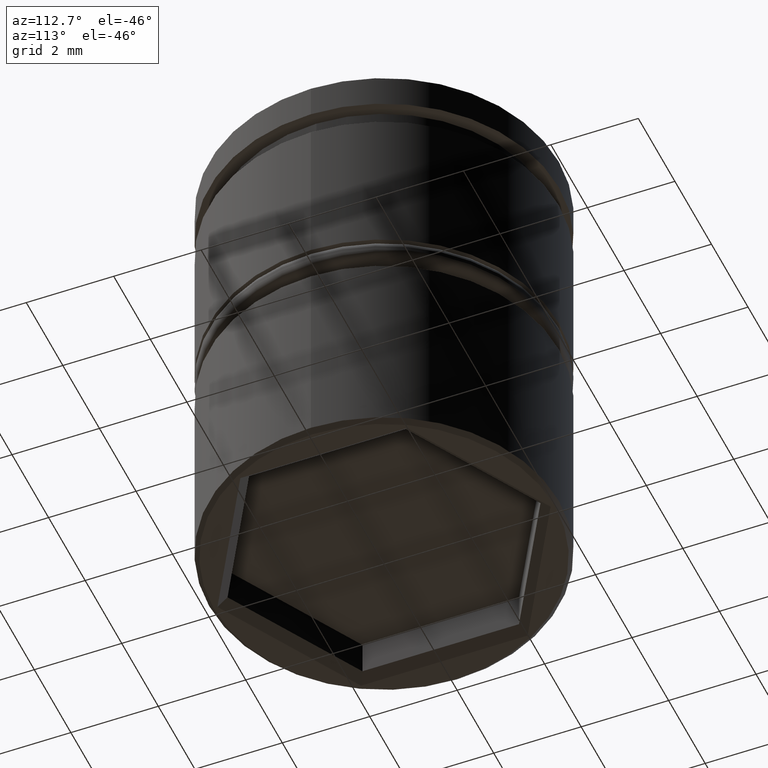
[diagram: clean part render]
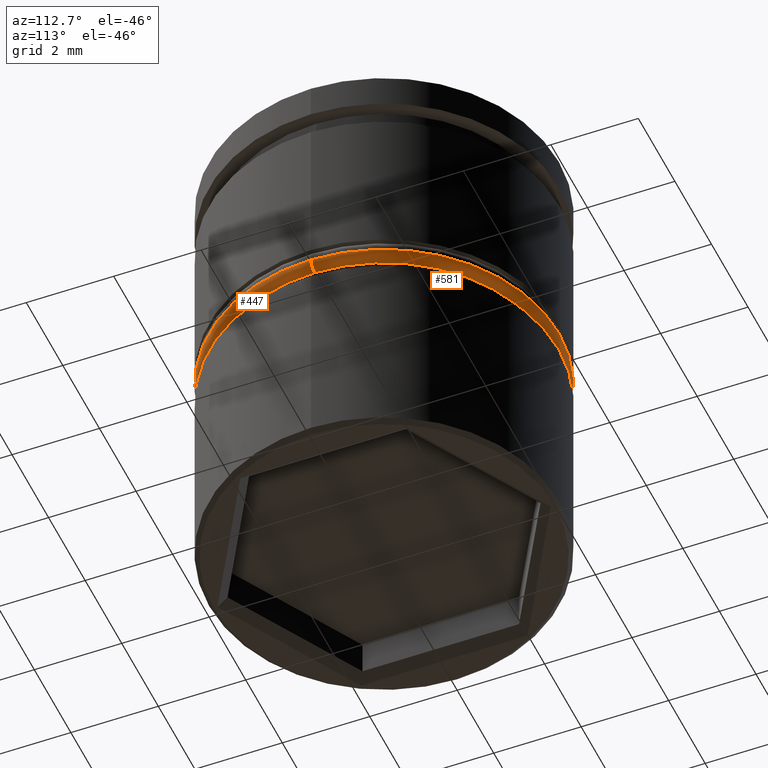
[diagram: same view with one multi-face feature highlighted, each face labeled with its STEP entity id]
A machine part, auxiliary view. The highlighted faces form ONE feature: a constant-radius fillet chain: 2 tangent blend faces with common blend radius 0.2 mm. The faces share edges in the B-rep.
Their STEP definitions:
[1] entity #447 (Torus):
#3 = ORIENTED_EDGE ( 'NONE', *, *, #1050, .T. ) ;
#6 = VERTEX_POINT ( 'NONE', #337 ) ;
#18 = CARTESIAN_POINT ( 'NONE',  ( 3.799999999999999822, 0.000000000000000000, -5.299999999999998934 ) ) ;
#28 = DIRECTION ( 'NONE',  ( 0.000000000000000000, 0.000000000000000000, 1.000000000000000000 ) ) ;
#130 = CIRCLE ( 'NONE', #1057, 0.1999999999999996503 ) ;
#150 = ORIENTED_EDGE ( 'NONE', *, *, #1127, .F. ) ;
#173 = CIRCLE ( 'NONE', #964, 0.2000000000000000944 ) ;
#176 = DIRECTION ( 'NONE',  ( 1.000000000000000000, 0.000000000000000000, 0.000000000000000000 ) ) ;
#201 = EDGE_CURVE ( 'NONE', #6, #346, #1016, .T. ) ;
#213 = DIRECTION ( 'NONE',  ( 1.224646799147353207E-16, 1.000000000000000000, -0.000000000000000000 ) ) ;
#232 = AXIS2_PLACEMENT_3D ( 'NONE', #688, #863, #944 ) ;
#234 = CARTESIAN_POINT ( 'NONE',  ( 3.799999999999999822, 0.000000000000000000, -5.499999999999999112 ) ) ;
#241 = EDGE_LOOP ( 'NONE', ( #150, #1151, #3, #1162 ) ) ;
#337 = CARTESIAN_POINT ( 'NONE',  ( -4.000000000000000000, 4.898587196589412829E-16, -5.299999999999998934 ) ) ;
#346 = VERTEX_POINT ( 'NONE', #805 ) ;
#380 = CARTESIAN_POINT ( 'NONE',  ( 0.000000000000000000, 0.000000000000000000, -5.299999999999998934 ) ) ;
#397 = CARTESIAN_POINT ( 'NONE',  ( -3.799999999999999822, 4.776122516674677286E-16, -5.499999999999999112 ) ) ;
#447 = ADVANCED_FACE ( 'NONE', ( #876 ), #785, .T. ) ;
#478 = VERTEX_POINT ( 'NONE', #234 ) ;
#484 = AXIS2_PLACEMENT_3D ( 'NONE', #910, #657, #176 ) ;
#494 = DIRECTION ( 'NONE',  ( 0.000000000000000000, -1.000000000000000000, 0.000000000000000000 ) ) ;
#603 = CIRCLE ( 'NONE', #484, 3.799999999999999822 ) ;
#657 = DIRECTION ( 'NONE',  ( -0.000000000000000000, -0.000000000000000000, -1.000000000000000000 ) ) ;
#688 = CARTESIAN_POINT ( 'NONE',  ( 0.000000000000000000, 0.000000000000000000, -5.299999999999998934 ) ) ;
#782 = AXIS2_PLACEMENT_3D ( 'NONE', #380, #28, #913 ) ;
#785 = TOROIDAL_SURFACE ( 'NONE', #232, 3.799999999999999822, 0.2000000000000000111 ) ;
#805 = CARTESIAN_POINT ( 'NONE',  ( 4.000000000000000000, 0.000000000000000000, -5.299999999999998934 ) ) ;
#842 = CARTESIAN_POINT ( 'NONE',  ( -3.799999999999999822, 4.653657836759942730E-16, -5.299999999999998934 ) ) ;
#845 = DIRECTION ( 'NONE',  ( 0.000000000000000000, 0.000000000000000000, -1.000000000000000000 ) ) ;
#863 = DIRECTION ( 'NONE',  ( 0.000000000000000000, 0.000000000000000000, 1.000000000000000000 ) ) ;
#868 = EDGE_CURVE ( 'NONE', #478, #1146, #603, .T. ) ;
#876 = FACE_OUTER_BOUND ( 'NONE', #241, .T. ) ;
#910 = CARTESIAN_POINT ( 'NONE',  ( 0.000000000000000000, 0.000000000000000000, -5.499999999999999112 ) ) ;
#913 = DIRECTION ( 'NONE',  ( 1.000000000000000000, 0.000000000000000000, 0.000000000000000000 ) ) ;
#944 = DIRECTION ( 'NONE',  ( 1.000000000000000000, 0.000000000000000000, 0.000000000000000000 ) ) ;
#964 = AXIS2_PLACEMENT_3D ( 'NONE', #842, #213, #1093 ) ;
#1016 = CIRCLE ( 'NONE', #782, 4.000000000000000000 ) ;
#1050 = EDGE_CURVE ( 'NONE', #478, #346, #130, .T. ) ;
#1057 = AXIS2_PLACEMENT_3D ( 'NONE', #18, #494, #845 ) ;
#1093 = DIRECTION ( 'NONE',  ( -1.000000000000000000, 1.224646799147350742E-16, 0.000000000000000000 ) ) ;
#1127 = EDGE_CURVE ( 'NONE', #1146, #6, #173, .T. ) ;
#1146 = VERTEX_POINT ( 'NONE', #397 ) ;
#1151 = ORIENTED_EDGE ( 'NONE', *, *, #868, .F. ) ;
#1162 = ORIENTED_EDGE ( 'NONE', *, *, #201, .F. ) ;
[2] entity #581 (Torus):
#6 = VERTEX_POINT ( 'NONE', #337 ) ;
#18 = CARTESIAN_POINT ( 'NONE',  ( 3.799999999999999822, 0.000000000000000000, -5.299999999999998934 ) ) ;
#71 = AXIS2_PLACEMENT_3D ( 'NONE', #670, #589, #302 ) ;
#130 = CIRCLE ( 'NONE', #1057, 0.1999999999999996503 ) ;
#167 = DIRECTION ( 'NONE',  ( 1.000000000000000000, 0.000000000000000000, 0.000000000000000000 ) ) ;
#173 = CIRCLE ( 'NONE', #964, 0.2000000000000000944 ) ;
#213 = DIRECTION ( 'NONE',  ( 1.224646799147353207E-16, 1.000000000000000000, -0.000000000000000000 ) ) ;
#234 = CARTESIAN_POINT ( 'NONE',  ( 3.799999999999999822, 0.000000000000000000, -5.499999999999999112 ) ) ;
#273 = ORIENTED_EDGE ( 'NONE', *, *, #1127, .T. ) ;
#302 = DIRECTION ( 'NONE',  ( 1.000000000000000000, 0.000000000000000000, 0.000000000000000000 ) ) ;
#337 = CARTESIAN_POINT ( 'NONE',  ( -4.000000000000000000, 4.898587196589412829E-16, -5.299999999999998934 ) ) ;
#346 = VERTEX_POINT ( 'NONE', #805 ) ;
#397 = CARTESIAN_POINT ( 'NONE',  ( -3.799999999999999822, 4.776122516674677286E-16, -5.499999999999999112 ) ) ;
#443 = CIRCLE ( 'NONE', #71, 3.799999999999999822 ) ;
#465 = EDGE_LOOP ( 'NONE', ( #755, #273, #1048, #787 ) ) ;
#478 = VERTEX_POINT ( 'NONE', #234 ) ;
#487 = AXIS2_PLACEMENT_3D ( 'NONE', #1014, #591, #1021 ) ;
#494 = DIRECTION ( 'NONE',  ( 0.000000000000000000, -1.000000000000000000, 0.000000000000000000 ) ) ;
#527 = TOROIDAL_SURFACE ( 'NONE', #749, 3.799999999999999822, 0.2000000000000000111 ) ;
#581 = ADVANCED_FACE ( 'NONE', ( #987 ), #527, .T. ) ;
#589 = DIRECTION ( 'NONE',  ( -0.000000000000000000, -0.000000000000000000, -1.000000000000000000 ) ) ;
#591 = DIRECTION ( 'NONE',  ( 0.000000000000000000, 0.000000000000000000, 1.000000000000000000 ) ) ;
#670 = CARTESIAN_POINT ( 'NONE',  ( 0.000000000000000000, 0.000000000000000000, -5.499999999999999112 ) ) ;
#732 = EDGE_CURVE ( 'NONE', #1146, #478, #443, .T. ) ;
#749 = AXIS2_PLACEMENT_3D ( 'NONE', #991, #968, #167 ) ;
#755 = ORIENTED_EDGE ( 'NONE', *, *, #732, .F. ) ;
#787 = ORIENTED_EDGE ( 'NONE', *, *, #1050, .F. ) ;
#805 = CARTESIAN_POINT ( 'NONE',  ( 4.000000000000000000, 0.000000000000000000, -5.299999999999998934 ) ) ;
#842 = CARTESIAN_POINT ( 'NONE',  ( -3.799999999999999822, 4.653657836759942730E-16, -5.299999999999998934 ) ) ;
#845 = DIRECTION ( 'NONE',  ( 0.000000000000000000, 0.000000000000000000, -1.000000000000000000 ) ) ;
#894 = CIRCLE ( 'NONE', #487, 4.000000000000000000 ) ;
#964 = AXIS2_PLACEMENT_3D ( 'NONE', #842, #213, #1093 ) ;
#968 = DIRECTION ( 'NONE',  ( 0.000000000000000000, 0.000000000000000000, 1.000000000000000000 ) ) ;
#987 = FACE_OUTER_BOUND ( 'NONE', #465, .T. ) ;
#991 = CARTESIAN_POINT ( 'NONE',  ( 0.000000000000000000, 0.000000000000000000, -5.299999999999998934 ) ) ;
#1014 = CARTESIAN_POINT ( 'NONE',  ( 0.000000000000000000, 0.000000000000000000, -5.299999999999998934 ) ) ;
#1021 = DIRECTION ( 'NONE',  ( 1.000000000000000000, 0.000000000000000000, 0.000000000000000000 ) ) ;
#1048 = ORIENTED_EDGE ( 'NONE', *, *, #1117, .F. ) ;
#1050 = EDGE_CURVE ( 'NONE', #478, #346, #130, .T. ) ;
#1057 = AXIS2_PLACEMENT_3D ( 'NONE', #18, #494, #845 ) ;
#1093 = DIRECTION ( 'NONE',  ( -1.000000000000000000, 1.224646799147350742E-16, 0.000000000000000000 ) ) ;
#1117 = EDGE_CURVE ( 'NONE', #346, #6, #894, .T. ) ;
#1127 = EDGE_CURVE ( 'NONE', #1146, #6, #173, .T. ) ;
#1146 = VERTEX_POINT ( 'NONE', #397 ) ;